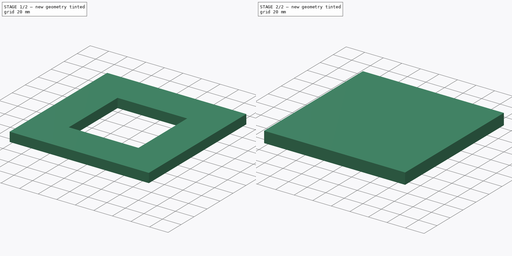
[diagram: build sequence overview — one tinted view per stage of 2, left to right]
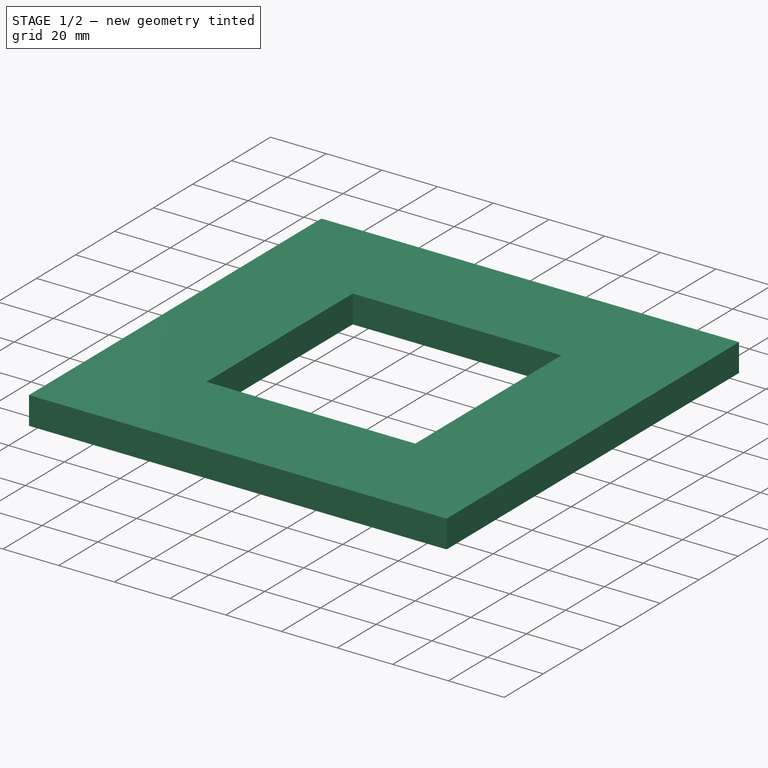
[diagram: stage 1 of 2 — iso view after this stage's code; geometry added in this stage tinted green]
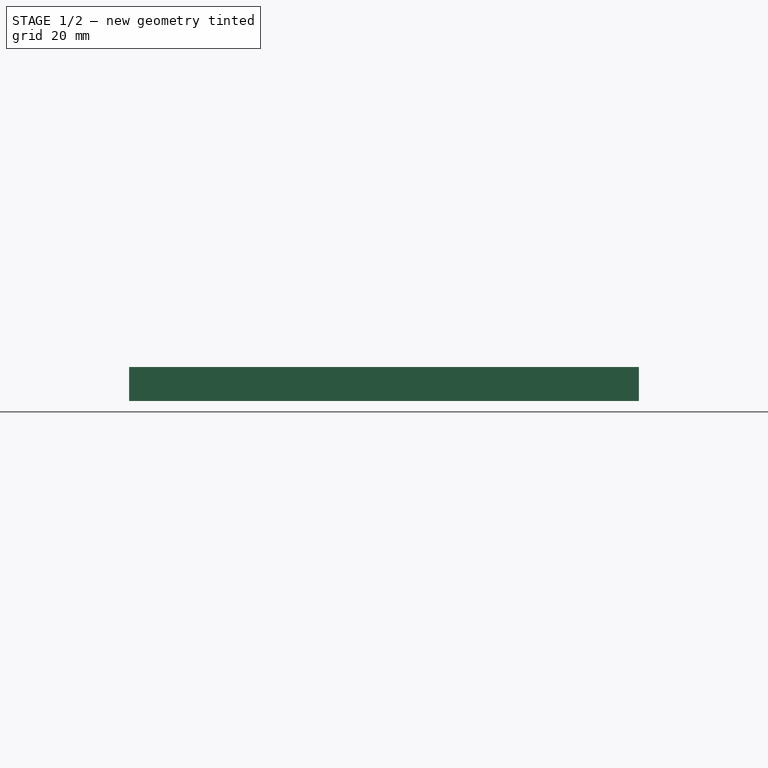
[diagram: stage 1 of 2 — front view after this stage's code; geometry added in this stage tinted green]
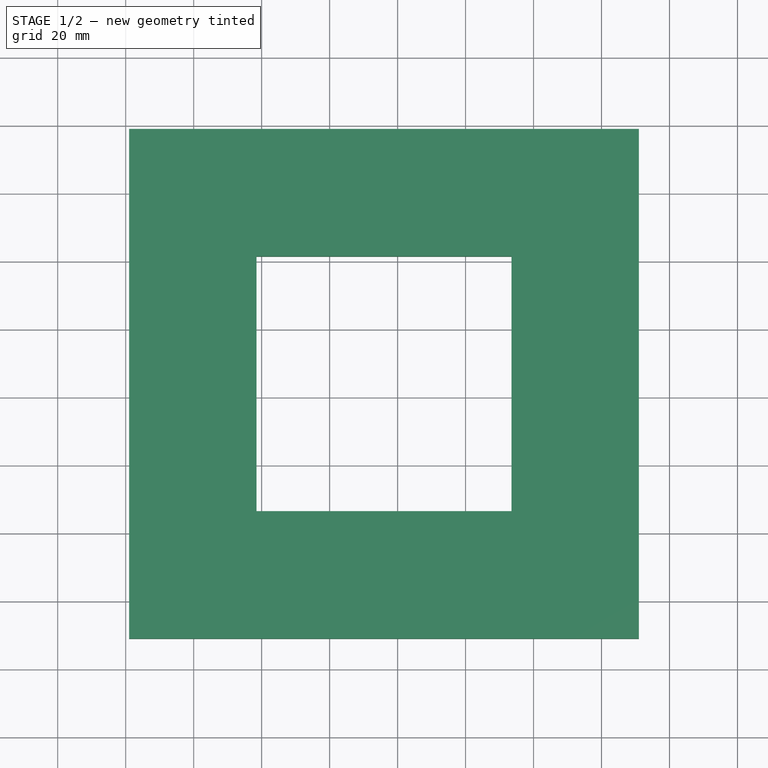
[diagram: stage 1 of 2 — top view after this stage's code; geometry added in this stage tinted green]
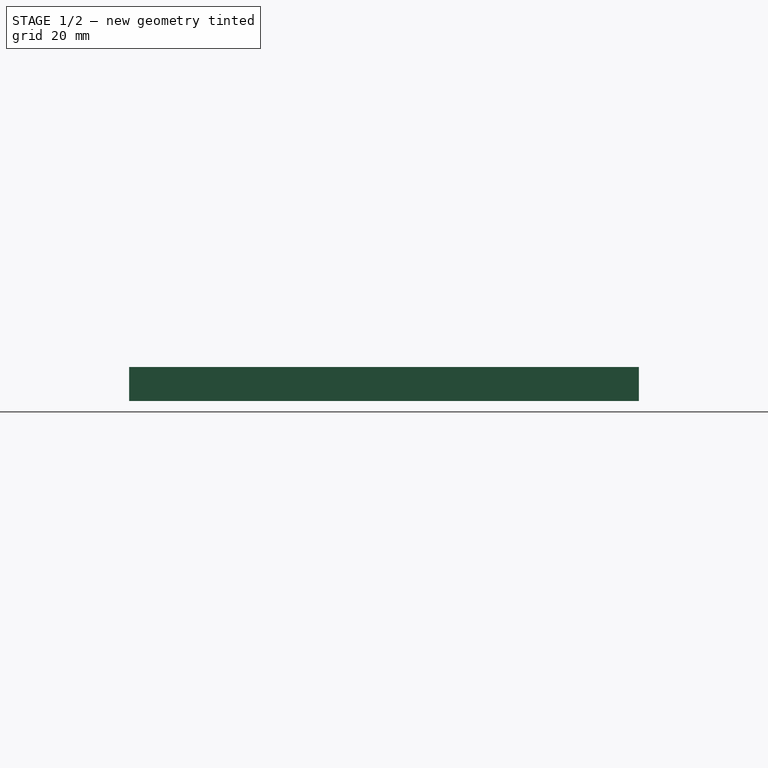
[diagram: stage 1 of 2 — right view after this stage's code; geometry added in this stage tinted green]
FCSTD DOCUMENT  (FreeCAD 0.18R13892 +10 (Git))
Label: engrave
License: All rights reserved
LicenseURL: http://en.wikipedia.org/wiki/All_rights_reserved
objects: Path::FeaturePython×4, Part::FeaturePython×2, Sketcher::SketchObject×1, PartDesign::Pad×1, PartDesign::Body×1, Part::Part2DObjectPython×1, App::FeaturePython×1, Path::FeatureCompoundPython×1
note: 8 computed .brp shape members not serialized (recipe doc carries the construction recipe); baked Part::Feature solids carry a one-line shape summary decoded from their .brp

FEATURE [Sketcher::SketchObject] Sketch
  MapMode = 5
  Support = -> [XY_Plane]
  sketch-geometry (8):
    g0: LineSegment StartX=-75 StartY=75 StartZ=0 EndX=75 EndY=75 EndZ=0
    g1: LineSegment StartX=75 StartY=75 StartZ=0 EndX=75 EndY=-75 EndZ=0
    g2: LineSegment StartX=75 StartY=-75 StartZ=0 EndX=-75 EndY=-75 EndZ=0
    g3: LineSegment StartX=-75 StartY=-75 StartZ=0 EndX=-75 EndY=75 EndZ=0
    g4: LineSegment StartX=-37.5 StartY=37.5 StartZ=0 EndX=37.5 EndY=37.5 EndZ=0
    g5: LineSegment StartX=37.5 StartY=37.5 StartZ=0 EndX=37.5 EndY=-37.5 EndZ=0
    g6: LineSegment StartX=37.5 StartY=-37.5 StartZ=0 EndX=-37.5 EndY=-37.5 EndZ=0
    g7: LineSegment StartX=-37.5 StartY=-37.5 StartZ=0 EndX=-37.5 EndY=37.5 EndZ=0
  constraints (22):
    c: Coincident(g0,g1)
    c: Coincident(g1,g2)
    c: Coincident(g2,g3)
    c: Coincident(g3,g0)
    c: Horizontal(g0)
    c: Horizontal(g2)
    c: Vertical(g1)
    c: Vertical(g3)
    c: Coincident(g4,g5)
    c: Coincident(g5,g6)
    c: Coincident(g6,g7)
    c: Coincident(g7,g4)
    c: Horizontal(g4)
    c: Horizontal(g6)
    c: Vertical(g5)
    c: Vertical(g7)
    c: Symmetric(g4,g5,g-1)
    c: Symmetric(g0,g1,g-1)
    c: DistanceX(g0,g0) = 150
    c: DistanceX(g4,g4) = 75
    c: DistanceY(g5,g5) = 75
    c: DistanceY(g1,g1) = 150
FEATURE [PartDesign::Pad] Pad
  Length = 10
  Length2 = 100
  Profile = -> Sketch
  Type = 0
FEATURE [PartDesign::Body] Body
  Group = -> [Sketch,Pad]
  Origin = -> Origin
  Tip = -> Pad
FEATURE [Part::Part2DObjectPython] ShapeString  # Draft 2D object (typed FeaturePython)
  AttachmentOffset = pos=(-64,-57,0) rot=(0,0,1;0rad)
  FontFile = <path>
  MapMode = 5
  Placement = pos=(-64,-57,10) rot=(0,0,1;0rad)
  Size = 15
  String = FreeCAD rocks!
  Support = -> [Pad]
  Tracking = 0
FEATURE [App::FeaturePython] SetupSheet  # Path/CAM operation (typed FeaturePython)
  ClearanceHeightExpression = StartDepth+SetupSheet.ClearanceHeightOffset
  ClearanceHeightOffset = 5
  FinalDepthExpression = OpFinalDepth
  HorizRapid = 0
  SafeHeightExpression = StartDepth+SetupSheet.SafeHeightOffset
  SafeHeightOffset = 3
  StartDepthExpression = OpStartDepth
  StepDownExpression = OpToolDiameter
  VertRapid = 0
FEATURE [Part::FeaturePython] Clone  label="Base-Body"  # Draft clone (typed FeaturePython)
  AttacherType = Attacher::AttachEngine3D
  Fuse = false
  Objects = -> [Body]
  PathResource = Base
  Placement = pos=(76,-76,-11) rot=(0,0,1;0rad)
  Scale = (1,1,1)
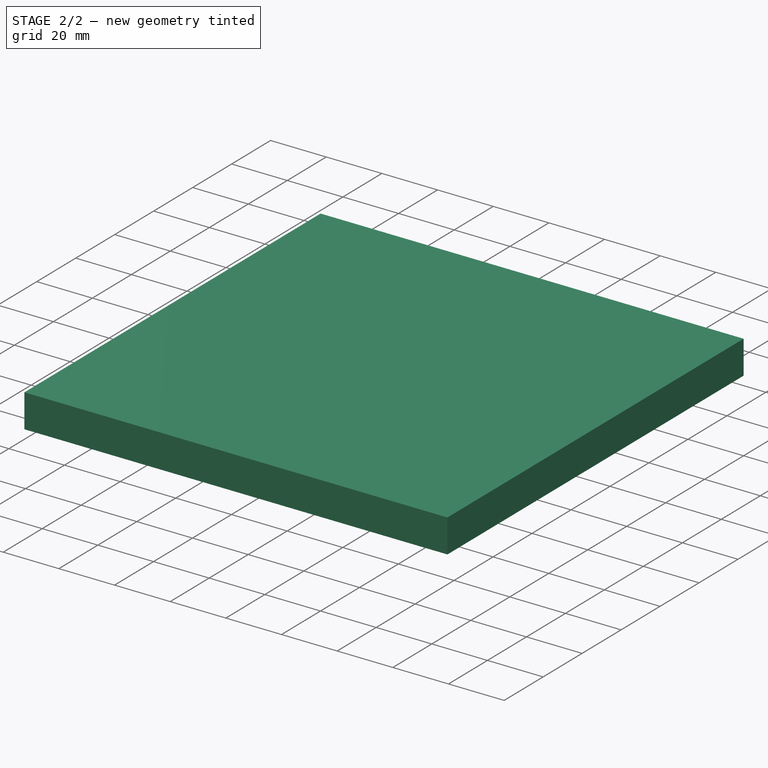
[diagram: stage 2 of 2 — iso view after this stage's code; geometry added in this stage tinted green]
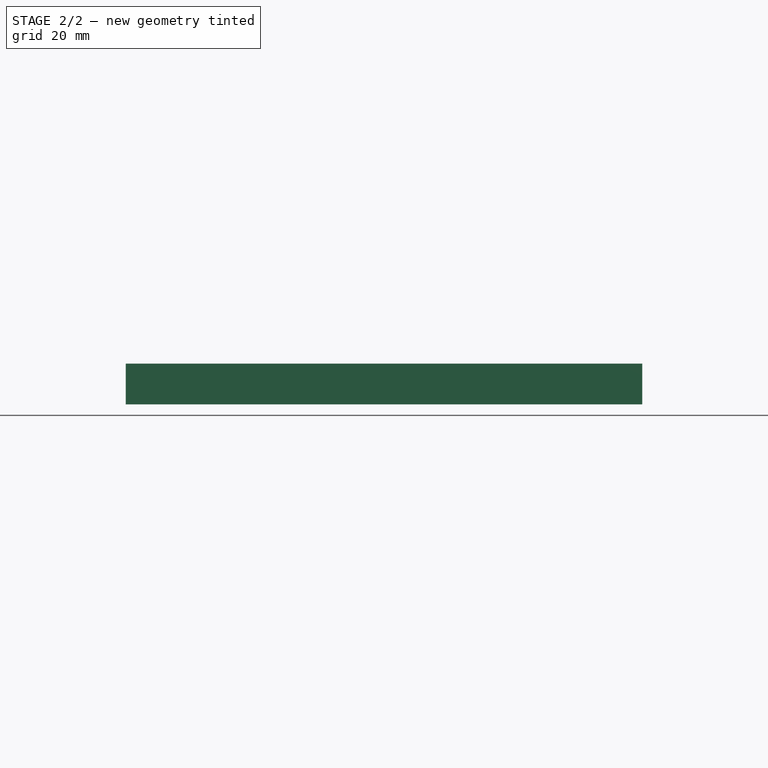
[diagram: stage 2 of 2 — front view after this stage's code; geometry added in this stage tinted green]
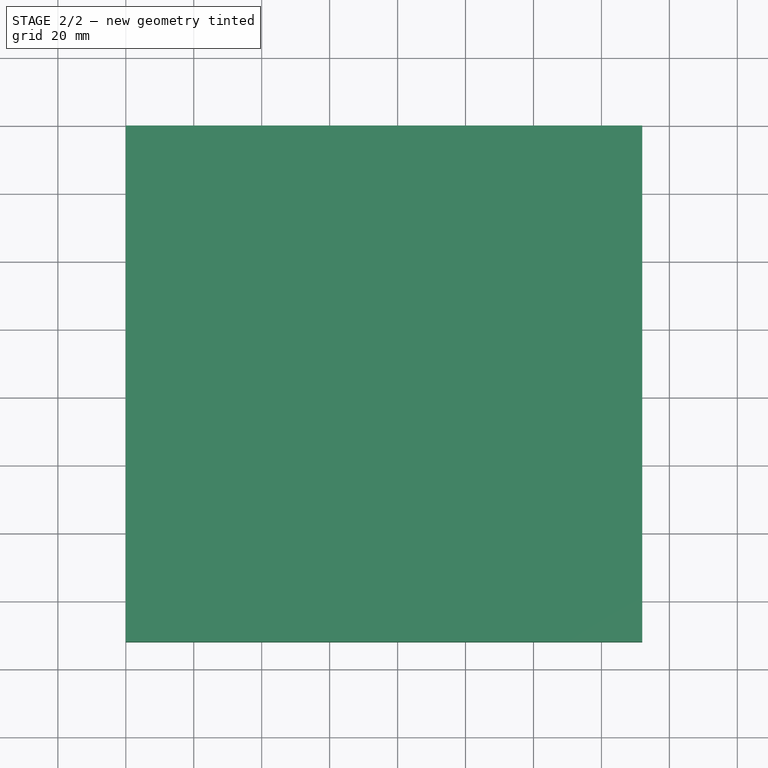
[diagram: stage 2 of 2 — top view after this stage's code; geometry added in this stage tinted green]
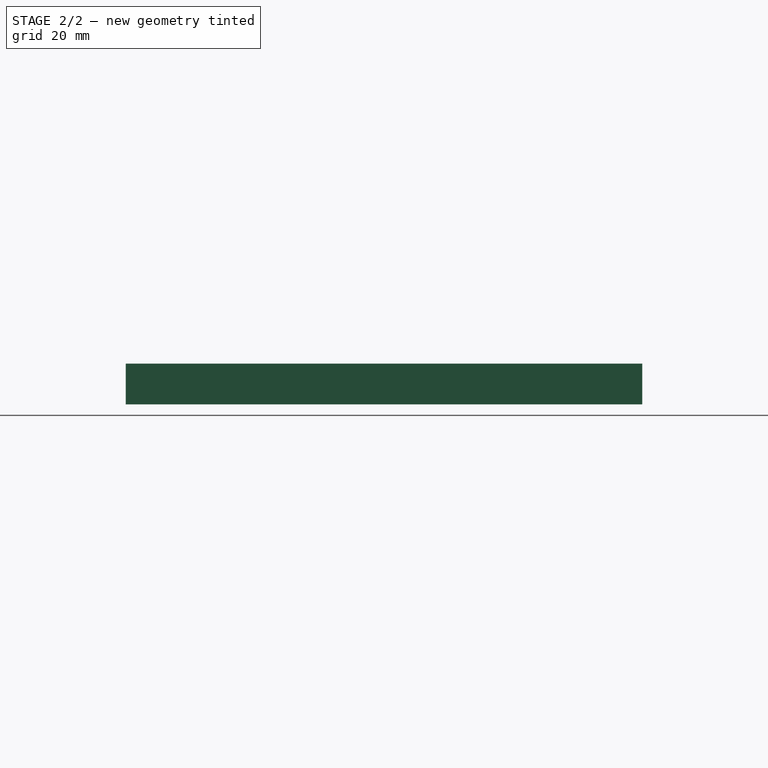
[diagram: stage 2 of 2 — right view after this stage's code; geometry added in this stage tinted green]
FEATURE [Part::FeaturePython] Stock  # WARN: FeaturePython — macro-defined, semantics opaque (R4)
  Base = -> Body
  ExtXneg = 1
  ExtXpos = 1
  ExtYneg = 1
  ExtYpos = 1
  ExtZneg = 1
  ExtZpos = 1
  Placement = pos=(76,-76,-11) rot=(0,0,1;0rad)
  StockType = FromBase
FEATURE [Path::FeaturePython] T1__1mm_Endmill  label="T1: 1mm Endmill"  # Path/CAM operation (typed FeaturePython)
  HorizFeed = 0
  HorizRapid = 0
  SpindleDir = 0
  SpindleSpeed = 0
  ToolNumber = 1
  VertFeed = 0
  VertRapid = 0
  expr: HorizRapid = SetupSheet.HorizRapid
  expr: VertRapid = SetupSheet.VertRapid
FEATURE [Path::FeaturePython] Engrave  # Path/CAM operation (typed FeaturePython)
  Active = true
  BaseShapes = -> [ShapeString]
  ClearanceHeight = 4
  FinalDepth = -2
  OpFinalDepth = -2
  OpStartDepth = -1
  OpToolDiameter = 1
  SafeHeight = 2
  StartDepth = -1
  StartVertex = 0
  StepDown = 1
  ToolController = -> T1__1mm_Endmill
  expr: ClearanceHeight = StartDepth + SetupSheet.ClearanceHeightOffset
  expr: SafeHeight = StartDepth + SetupSheet.SafeHeightOffset
  expr: StepDown = OpToolDiameter
  expr: FinalDepth = OpFinalDepth
  expr: StartDepth = OpStartDepth
FEATURE [Path::FeaturePython] Profile_Faces  # Path/CAM operation (typed FeaturePython)
  Active = true
  AreaParams:
    OpenMode = 0
    Angle = 45.0
    MinArcPoints = 4
    Coplanar = 0
    Tolerance = 0.01
    CleanDistance = 0.0
    PocketExtraOffset = 0.0
    RoundPrecision = 0.0
    AngleShift = 0.0
    SubjectFill = 0
    PocketMode = 0
    Simplify = False
    SectionTolerance = 1e-06
    MaxArcPoints = 100
    Offset = -0.5
    Accuracy = 0.01
    PocketStepover = 0.0
    ClipFill = 0
    ToolRadius = 1.0
    Outline = False
    ClipperScale = 10000000.0
    FromCenter = False
    Explode = False
    EndType = 0
    Shift = 0.0
    ExtraPass = 0
    Project = False
    JoinType = 0
    Thicken = False
    Stepdown = 1.0
    SectionMode = 2
    MiterLimit = 2.0
    Deflection = 0.01
    Reorient = True
    FitArcs = True
    SectionCount = -1
    SectionOffset = 0.0
    Stepover = 0.0
    Unit = 1.0
    Fill = 0
  Base = -> [Clone]
  ClearanceHeight = 5
  Direction = 0
  FinalDepth = -1
  JoinType = 0
  MiterLimit = 0.1
  OffsetExtra = 0
  OpFinalDepth = -1
  OpStartDepth = 0
  OpToolDiameter = 1
  PathParams = {'resume_height': 3.0, 'feedrate': 0.0, 'verbose': True, 'orientation': 0, 'return_end': True, 'preamble': False, 'retraction': 5.0, 'feedrate_v': 0.0}
  SafeHeight = 3
  Side = 0
  StartDepth = 0
  StartPoint = (0,0,0)
  StepDown = 1
  ToolController = -> T1__1mm_Endmill
  UseComp = true
  UseStartPoint = false
  processCircles = false
  processHoles = true
  processPerimeter = false
  expr: ClearanceHeight = StartDepth + SetupSheet.ClearanceHeightOffset
  expr: SafeHeight = StartDepth + SetupSheet.SafeHeightOffset
  expr: StepDown = OpToolDiameter
  expr: FinalDepth = OpFinalDepth
  expr: StartDepth = OpStartDepth
FEATURE [Path::FeatureCompoundPython] Operations  # Path/CAM operation (typed FeaturePython)
  Group = -> [Engrave,Profile_Faces]
  UsePlacements = false
FEATURE [Path::FeaturePython] Job  # Path/CAM operation (typed FeaturePython)
  Base = -> Clone
  GeometryTolerance = 0.01
  Operations = -> Operations
  PostProcessor = 7
  PostProcessorOutputFile = /tmp
  SetupSheet = -> SetupSheet
  Stock = -> Stock
  ToolController = -> [T1__1mm_Endmill]
note: 1 file-system path scrubbed to <path> (originals preserved in the JSON sidecar)
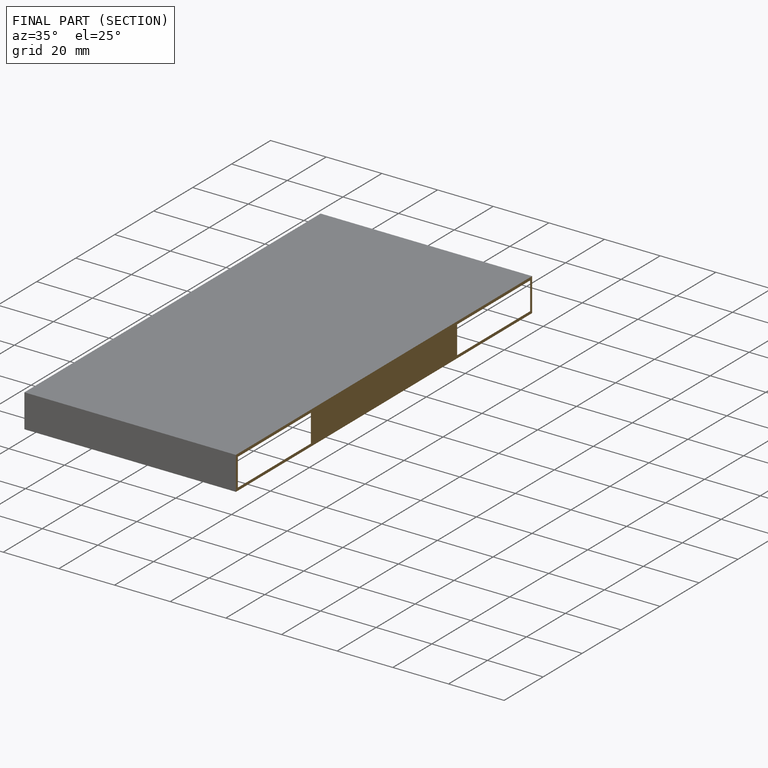
[diagram: finished part — half-section view (interior)]
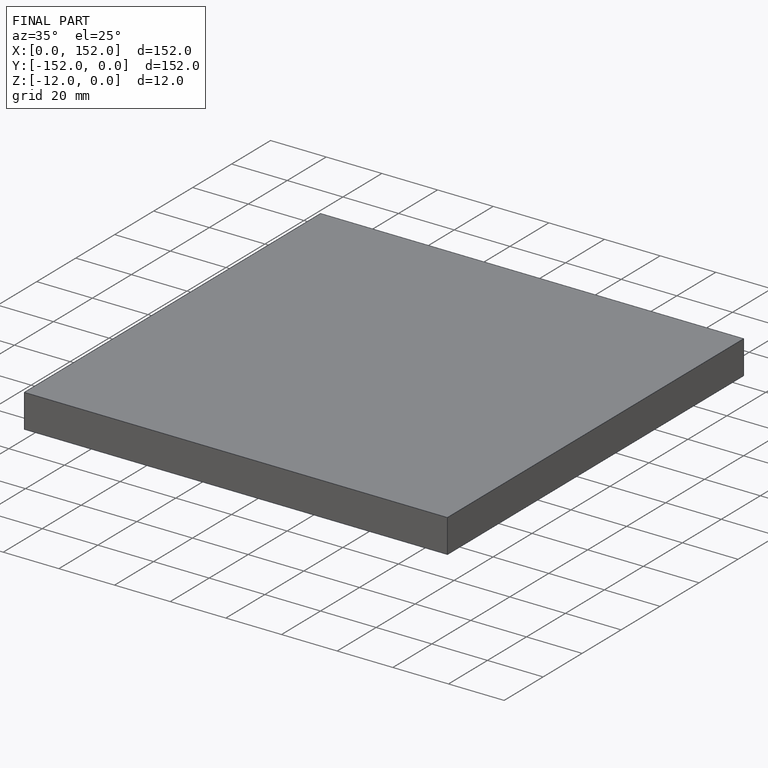
[diagram: finished part — iso view with bounding-box wireframe]
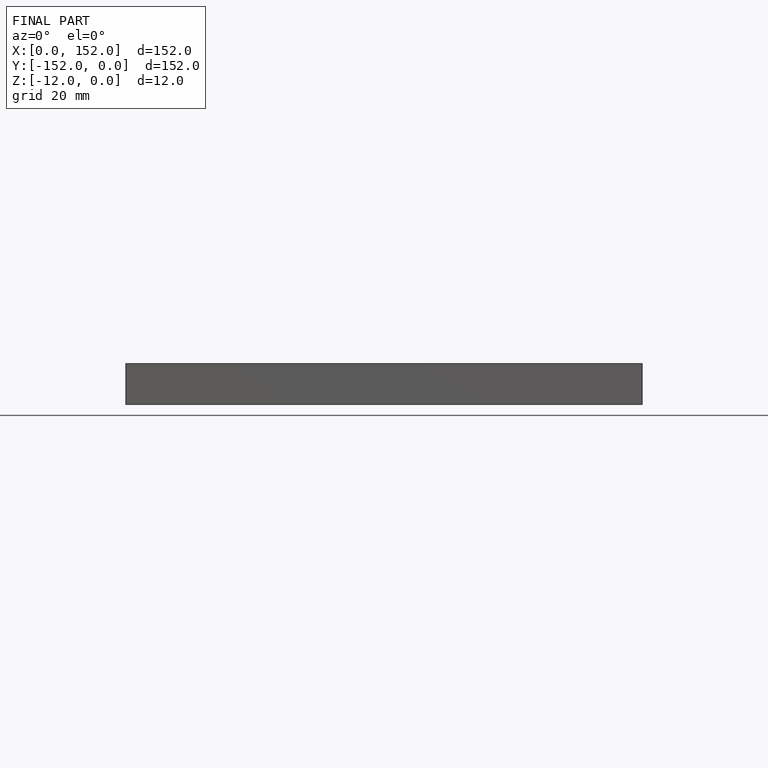
[diagram: finished part — front view with bounding-box wireframe]
